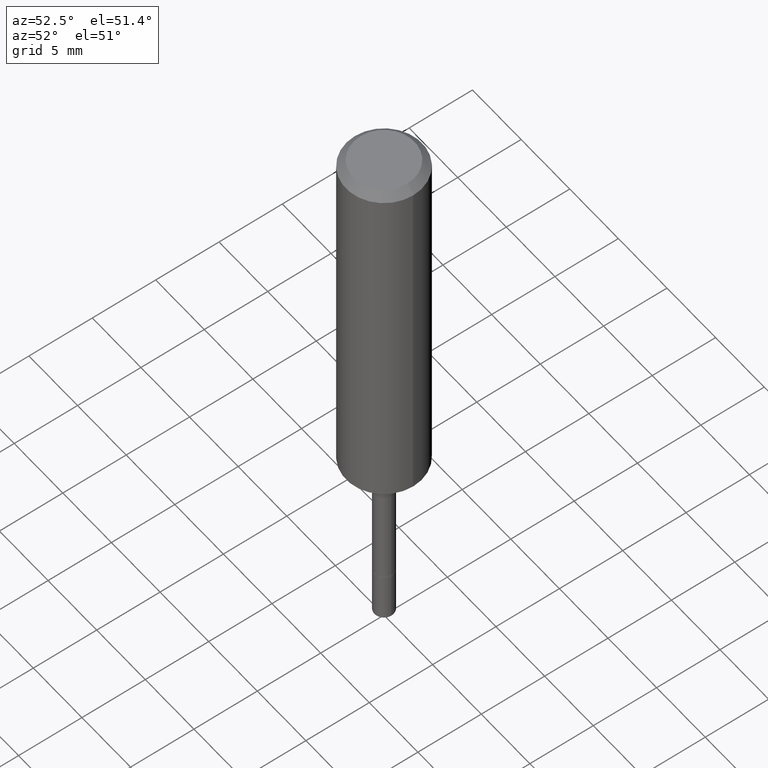
[diagram: clean part render]
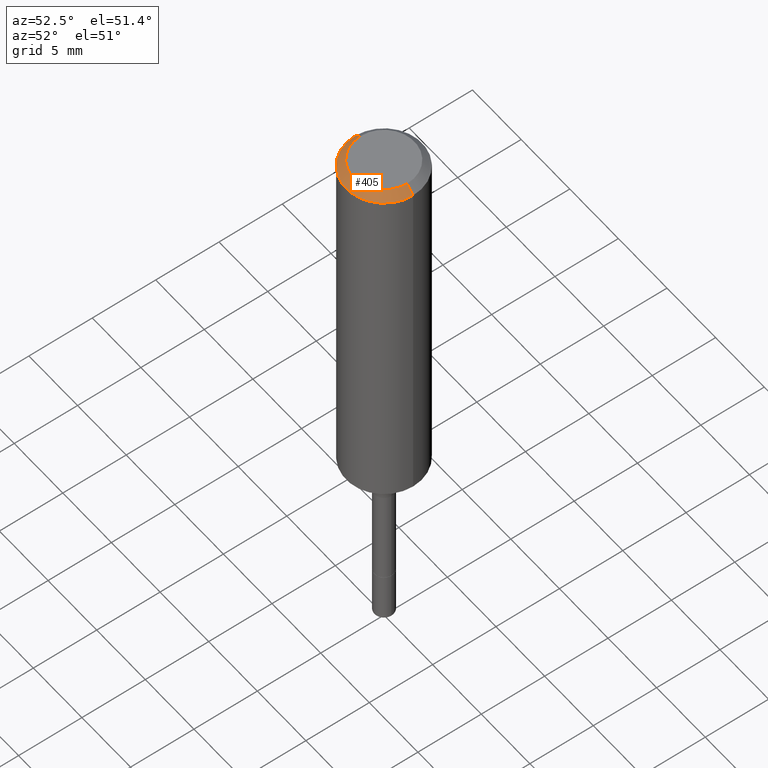
[diagram: same view with one face highlighted and labeled with its STEP entity id]
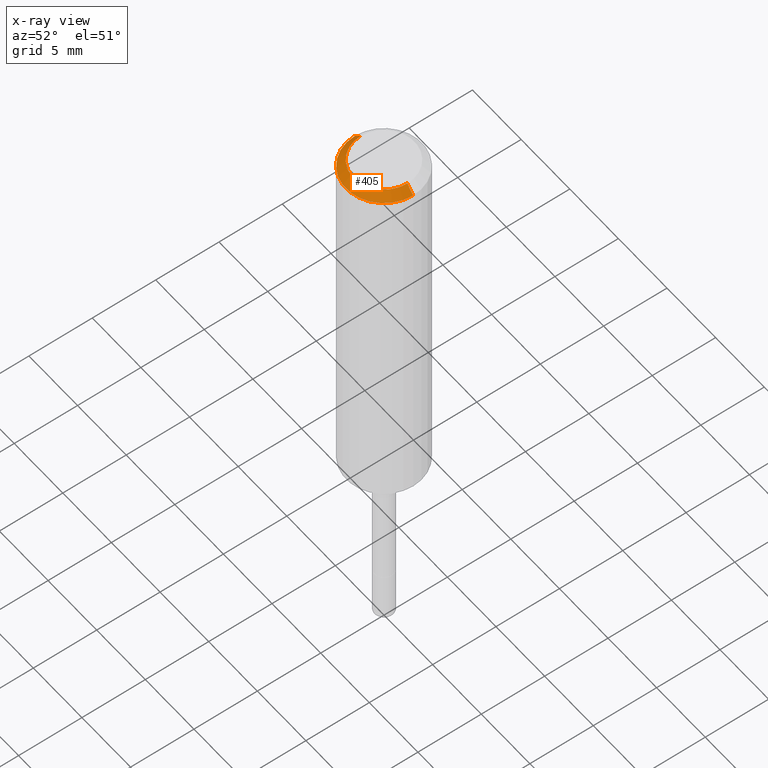
[diagram: x-ray of the same camera — body ghosted, the highlighted face saturated]
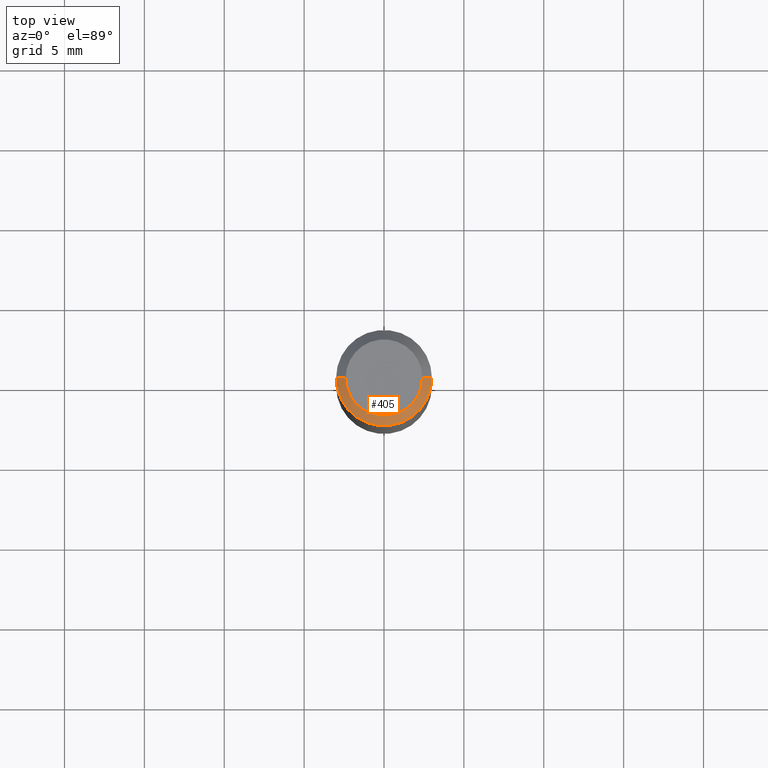
[diagram: same view with one face highlighted and labeled with its STEP entity id]
A machine part, auxiliary view. The second image highlights one B-rep face of the part: STEP entity #405.
The next image is the same camera in x-ray: the body ghosted, the highlighted face saturated — about 0% of this face is hidden behind the body in this view.
A second angle (top view) of the same face is appended — the face is thin or edge-on in the first view.
In plain terms, the highlighted conical surface has half-angle 45 deg.
Its self-contained STEP definition (entity closure, byte-faithful):
#1 = VERTEX_POINT ( 'NONE', #514 ) ;
#6 = VECTOR ( 'NONE', #280, 39.37007874015748143 ) ;
#19 = CIRCLE ( 'NONE', #119, 0.09447999999999998066 ) ;
#26 = VECTOR ( 'NONE', #167, 39.37007874015748143 ) ;
#43 = LINE ( 'NONE', #89, #26 ) ;
#62 = CARTESIAN_POINT ( 'NONE',  ( 5.776197320209326656E-31, -8.246878922347558061E-17, -0.02362000000000013741 ) ) ;
#67 = EDGE_CURVE ( 'NONE', #290, #467, #43, .T. ) ;
#89 = CARTESIAN_POINT ( 'NONE',  ( 0.1180999999999999966, -8.926936027602933910E-16, -0.02362000000000013741 ) ) ;
#99 = EDGE_LOOP ( 'NONE', ( #181, #102, #436, #441 ) ) ;
#102 = ORIENTED_EDGE ( 'NONE', *, *, #450, .F. ) ;
#111 = FACE_OUTER_BOUND ( 'NONE', #99, .T. ) ;
#119 = AXIS2_PLACEMENT_3D ( 'NONE', #124, #203, #442 ) ;
#124 = CARTESIAN_POINT ( 'NONE',  ( 7.545787641473140628E-46, -1.077338491108201769E-31, -3.085620075131671975E-17 ) ) ;
#163 = AXIS2_PLACEMENT_3D ( 'NONE', #471, #267, #432 ) ;
#167 = DIRECTION ( 'NONE',  ( 0.7071067811865461294, -7.319954787623251312E-15, -0.7071067811865489050 ) ) ;
#181 = ORIENTED_EDGE ( 'NONE', *, *, #67, .F. ) ;
#192 = CIRCLE ( 'NONE', #341, 0.1180999999999999966 ) ;
#203 = DIRECTION ( 'NONE',  ( -2.445468806185136597E-29, 3.491481338843145583E-15, 1.000000000000000000 ) ) ;
#217 = EDGE_CURVE ( 'NONE', #333, #467, #192, .T. ) ;
#220 = DIRECTION ( 'NONE',  ( -2.445468806185136597E-29, 3.491481338843145583E-15, 1.000000000000000000 ) ) ;
#267 = DIRECTION ( 'NONE',  ( 2.445468806185136597E-29, -3.491481338843145583E-15, -1.000000000000000000 ) ) ;
#270 = CARTESIAN_POINT ( 'NONE',  ( 0.1180999999999999966, -9.071566814582237199E-16, -0.02362000000000013741 ) ) ;
#280 = DIRECTION ( 'NONE',  ( -0.7071067811865461294, 2.468850131082242072E-15, -0.7071067811865489050 ) ) ;
#290 = VERTEX_POINT ( 'NONE', #369 ) ;
#302 = CONICAL_SURFACE ( 'NONE', #163, 0.1180999999999999966, 0.7853981633974463916 ) ;
#304 = EDGE_CURVE ( 'NONE', #1, #333, #330, .T. ) ;
#330 = LINE ( 'NONE', #418, #6 ) ;
#333 = VERTEX_POINT ( 'NONE', #340 ) ;
#340 = CARTESIAN_POINT ( 'NONE',  ( -0.1180999999999999966, -1.250236851082501907E-15, -0.02362000000000013741 ) ) ;
#341 = AXIS2_PLACEMENT_3D ( 'NONE', #62, #220, #434 ) ;
#369 = CARTESIAN_POINT ( 'NONE',  ( 0.09447999999999998066, -7.704367267948738690E-16, -3.085620075131172158E-17 ) ) ;
#405 = ADVANCED_FACE ( 'NONE', ( #111 ), #302, .T. ) ;
#418 = CARTESIAN_POINT ( 'NONE',  ( -0.1180999999999999966, 7.422191030112725094E-16, -0.02362000000000013741 ) ) ;
#432 = DIRECTION ( 'NONE',  ( -1.000000000000000000, 6.982962677686266711E-15, 0.000000000000000000 ) ) ;
#434 = DIRECTION ( 'NONE',  ( 1.000000000000000000, -6.982962677686266711E-15, 0.000000000000000000 ) ) ;
#436 = ORIENTED_EDGE ( 'NONE', *, *, #304, .T. ) ;
#441 = ORIENTED_EDGE ( 'NONE', *, *, #217, .T. ) ;
#442 = DIRECTION ( 'NONE',  ( 1.000000000000000000, -6.982962677686267499E-15, 4.875432709231658792E-29 ) ) ;
#450 = EDGE_CURVE ( 'NONE', #1, #290, #19, .T. ) ;
#467 = VERTEX_POINT ( 'NONE', #270 ) ;
#471 = CARTESIAN_POINT ( 'NONE',  ( 5.776197320209326656E-31, -8.246878922347558061E-17, -0.02362000000000013741 ) ) ;
#514 = CARTESIAN_POINT ( 'NONE',  ( -0.09447999999999998066, 7.009847083995354710E-16, -3.085620075132147757E-17 ) ) ;